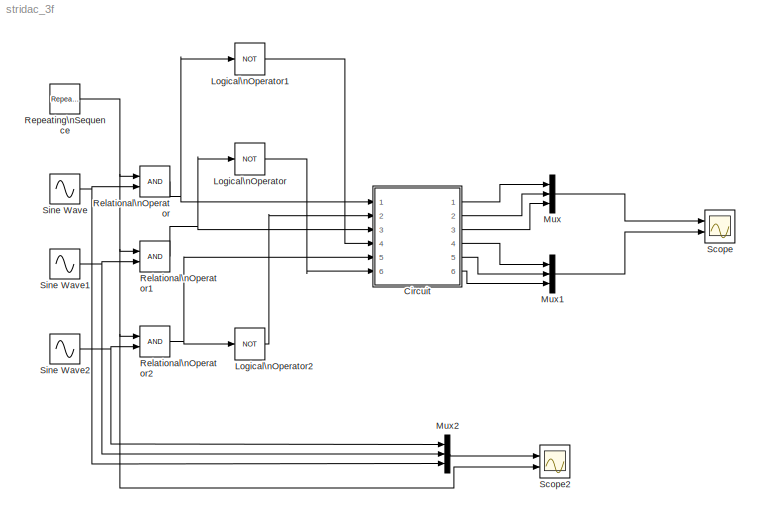
MODEL stridac_3f
KIND model
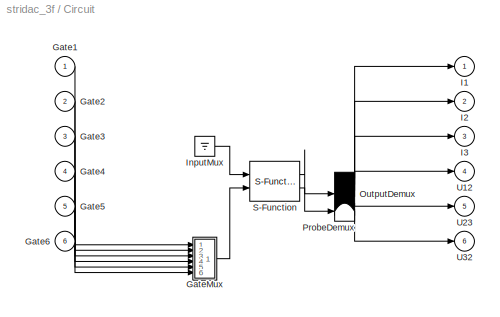
BLOCK [SubSystem] Circuit
  CopyFcn = plecsedit('sl', 203);
  DeleteFcn = plecsedit('sl', 205);
  DestroyFcn = plecsedit('sl', 207);
  ErrorFcn = plerrorfcn
  FunctionWithSeparateData = off
  InitFcn = plecsedit('sl', 214);
  LoadFcn = plecsedit('sl', 200);
  MaskHideContents = off
  MinAlgLoopOccurrences = off
  NameChangeFcn = plecsedit('sl', 210);
  Opaque = off
  OpenFcn = plecsedit('sl', 202);
  Ports = [6, 6]
  PostSaveFcn = plecsedit('sl', 201);
  PreCopyFcn = plecsedit('sl', 216);
  PreSaveFcn = plecsedit('sl', 211);
  PropExecContextOutsideSubsystem = off
  RTWSystemCode = Auto
  RequestExecContextInheritance = off
  SID = 1
  StartFcn = plecsedit('sl', 208);
  StopFcn = plecsedit('sl', 209);
  UndoDeleteFcn = plecsedit('sl', 206);
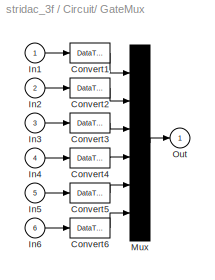
BLOCK [SubSystem] Circuit/ GateMux 
  FunctionWithSeparateData = off
  MaskHideContents = off
  MinAlgLoopOccurrences = off
  Opaque = off
  Ports = [6, 1]
  PropExecContextOutsideSubsystem = off
  RTWSystemCode = Auto
  RequestExecContextInheritance = off
  SID = 1:276
BLOCK [DataTypeConversion] Circuit/ GateMux /Convert1
  SID = 1:280
BLOCK [DataTypeConversion] Circuit/ GateMux /Convert2
  SID = 1:282
BLOCK [DataTypeConversion] Circuit/ GateMux /Convert3
  SID = 1:284
BLOCK [DataTypeConversion] Circuit/ GateMux /Convert4
  SID = 1:286
BLOCK [DataTypeConversion] Circuit/ GateMux /Convert5
  SID = 1:288
BLOCK [DataTypeConversion] Circuit/ GateMux /Convert6
  SID = 1:290
BLOCK [Inport] Circuit/ GateMux /In1
  IconDisplay = Port number
  SID = 1:279
BLOCK [Inport] Circuit/ GateMux /In2
  IconDisplay = Port number
  Port = 2
  SID = 1:281
BLOCK [Inport] Circuit/ GateMux /In3
  IconDisplay = Port number
  Port = 3
  SID = 1:283
BLOCK [Inport] Circuit/ GateMux /In4
  IconDisplay = Port number
  Port = 4
  SID = 1:285
BLOCK [Inport] Circuit/ GateMux /In5
  IconDisplay = Port number
  Port = 5
  SID = 1:287
BLOCK [Inport] Circuit/ GateMux /In6
  IconDisplay = Port number
  Port = 6
  SID = 1:289
BLOCK [Mux] Circuit/ GateMux /Mux
  Inputs = [ 1 1 1 1 1 1 ]
  Ports = [6, 1]
  SID = 1:278
BLOCK [Outport] Circuit/ GateMux /Out
  IconDisplay = Port number
  SID = 1:277
BLOCK [Ground] Circuit/ InputMux 
  SID = 1:223
BLOCK [Demux] Circuit/ OutputDemux 
  Outputs = [ 1 1 1 1 1 1 ]
  Ports = [1, 6]
  SID = 1:225
BLOCK [Terminator] Circuit/ ProbeDemux 
  SID = 1:9
BLOCK [S-Function] Circuit/ S-Function 
  EnableBusSupport = off
  FunctionName = plecsedit
  Ports = [2, 2]
  SID = 1:10
BLOCK [Inport] Circuit/Gate1
  IconDisplay = Port number
  PortDimensions = 1
  SID = 1:204
BLOCK [Inport] Circuit/Gate2
  IconDisplay = Port number
  Port = 2
  PortDimensions = 1
  SID = 1:231
BLOCK [Inport] Circuit/Gate3
  IconDisplay = Port number
  Port = 3
  PortDimensions = 1
  SID = 1:239
BLOCK [Inport] Circuit/Gate4
  IconDisplay = Port number
  Port = 4
  PortDimensions = 1
  SID = 1:249
BLOCK [Inport] Circuit/Gate5
  IconDisplay = Port number
  Port = 5
  PortDimensions = 1
  SID = 1:261
BLOCK [Inport] Circuit/Gate6
  IconDisplay = Port number
  Port = 6
  PortDimensions = 1
  SID = 1:275
BLOCK [Outport] Circuit/I1
  IconDisplay = Port number
  PortDimensions = 1
  SID = 1:224
BLOCK [Outport] Circuit/I2
  IconDisplay = Port number
  Port = 2
  PortDimensions = 1
  SID = 1:226
BLOCK [Outport] Circuit/I3
  IconDisplay = Port number
  Port = 3
  PortDimensions = 1
  SID = 1:227
BLOCK [Outport] Circuit/U12
  IconDisplay = Port number
  Port = 4
  PortDimensions = 1
  SID = 1:228
BLOCK [Outport] Circuit/U23
  IconDisplay = Port number
  Port = 5
  PortDimensions = 1
  SID = 1:229
BLOCK [Outport] Circuit/U32
  IconDisplay = Port number
  Port = 6
  PortDimensions = 1
  SID = 1:230
BLOCK [Logic] Logical\nOperator
  AllPortsSameDT = off
  Operator = NOT
  OutDataTypeStr = boolean
  Ports = [1, 1]
  SID = 10
BLOCK [Logic] Logical\nOperator1
  AllPortsSameDT = off
  Operator = NOT
  OutDataTypeStr = boolean
  Ports = [1, 1]
  SID = 20
BLOCK [Logic] Logical\nOperator2
  AllPortsSameDT = off
  Operator = NOT
  OutDataTypeStr = boolean
  Ports = [1, 1]
  SID = 21
BLOCK [Mux] Mux
  DisplayOption = bar
  Inputs = 3
  Ports = [3, 1]
  SID = 4
BLOCK [Mux] Mux1
  DisplayOption = bar
  Inputs = 3
  Ports = [3, 1]
  SID = 5
BLOCK [Mux] Mux2
  DisplayOption = bar
  Inputs = 3
  Ports = [3, 1]
  SID = 22
BLOCK [RelationalOperator] Relational\nOperator
  InputSameDT = off
  OutDataTypeStr = boolean
  Ports = [2, 1]
  SID = 9
BLOCK [RelationalOperator] Relational\nOperator1
  InputSameDT = off
  OutDataTypeStr = boolean
  Ports = [2, 1]
  SID = 12
BLOCK [RelationalOperator] Relational\nOperator2
  InputSameDT = off
  OutDataTypeStr = boolean
  Ports = [2, 1]
  SID = 15
BLOCK [Reference] Repeating\nSequence  REF=simulink/Sources/Repeating\nSequence
  Ports = [0, 1]
  SID = 8
  SourceBlock = simulink/Sources/Repeating\nSequence
  SourceType = Repeating table
  rep_seq_t = [0 0.5 1]/1000
  rep_seq_y = [-1 1 -1]
BLOCK [Scope] Scope
  DataFormat = StructureWithTime
  Floating = off
  LimitDataPoints = off
  NumInputPorts = 2
  Ports = [2]
  SID = 2
  SampleTime = 0
  ShowLegends = off
  TimeRange = 0.5
  YMax = 700~200
  YMin = -700~-200
BLOCK [Scope] Scope2
  DataFormat = StructureWithTime
  Floating = off
  LimitDataPoints = off
  NumInputPorts = 2
  Ports = [2]
  SID = 6
  SampleTime = 0
  SaveName = ScopeData2
  ShowLegends = off
  YMax = 1~5
  YMin = -1~-5
  ZoomMode = yonly
BLOCK [Sin] Sine Wave
  Frequency = 50
  Ports = [0, 1]
  SID = 17
  SampleTime = 0
BLOCK [Sin] Sine Wave1
  Frequency = 50
  Phase = (2*pi)/(3)
  Ports = [0, 1]
  SID = 18
  SampleTime = 0
BLOCK [Sin] Sine Wave2
  Frequency = 50
  Phase = (4*pi)/3
  Ports = [0, 1]
  SID = 19
  SampleTime = 0
LINE Circuit/ GateMux /Convert1:1 -> Circuit/ GateMux /Mux:1
LINE Circuit/ GateMux /Convert2:1 -> Circuit/ GateMux /Mux:2
LINE Circuit/ GateMux /Convert3:1 -> Circuit/ GateMux /Mux:3
LINE Circuit/ GateMux /Convert4:1 -> Circuit/ GateMux /Mux:4
LINE Circuit/ GateMux /Convert5:1 -> Circuit/ GateMux /Mux:5
LINE Circuit/ GateMux /Convert6:1 -> Circuit/ GateMux /Mux:6
LINE Circuit/ GateMux /In1:1 -> Circuit/ GateMux /Convert1:1
LINE Circuit/ GateMux /In2:1 -> Circuit/ GateMux /Convert2:1
LINE Circuit/ GateMux /In3:1 -> Circuit/ GateMux /Convert3:1
LINE Circuit/ GateMux /In4:1 -> Circuit/ GateMux /Convert4:1
LINE Circuit/ GateMux /In5:1 -> Circuit/ GateMux /Convert5:1
LINE Circuit/ GateMux /In6:1 -> Circuit/ GateMux /Convert6:1
LINE Circuit/ GateMux /Mux:1 -> Circuit/ GateMux /Out:1
LINE Circuit/ GateMux :1 -> Circuit/ S-Function :2
LINE Circuit/ InputMux :1 -> Circuit/ S-Function :1
LINE Circuit/ OutputDemux :1 -> Circuit/I1:1
LINE Circuit/ OutputDemux :2 -> Circuit/I2:1
LINE Circuit/ OutputDemux :3 -> Circuit/I3:1
LINE Circuit/ OutputDemux :4 -> Circuit/U12:1
LINE Circuit/ OutputDemux :5 -> Circuit/U23:1
LINE Circuit/ OutputDemux :6 -> Circuit/U32:1
LINE Circuit/ S-Function :1 -> Circuit/ OutputDemux :1
LINE Circuit/ S-Function :2 -> Circuit/ ProbeDemux :1
LINE Circuit/Gate1:1 -> Circuit/ GateMux :1
LINE Circuit/Gate2:1 -> Circuit/ GateMux :2
LINE Circuit/Gate3:1 -> Circuit/ GateMux :3
LINE Circuit/Gate4:1 -> Circuit/ GateMux :4
LINE Circuit/Gate5:1 -> Circuit/ GateMux :5
LINE Circuit/Gate6:1 -> Circuit/ GateMux :6
LINE Circuit:1 -> Mux:1
LINE Circuit:2 -> Mux:2
LINE Circuit:3 -> Mux:3
LINE Circuit:4 -> Mux1:1
LINE Circuit:5 -> Mux1:2
LINE Circuit:6 -> Mux1:3
LINE Logical\nOperator1:1 -> Circuit:4
LINE Logical\nOperator2:1 -> Circuit:2
LINE Logical\nOperator:1 -> Circuit:6
LINE Mux1:1 -> Scope:2
LINE Mux2:1 -> Scope2:1
LINE Mux:1 -> Scope:1
NET Relational\nOperator1:1 -> Circuit:3, Logical\nOperator:1
NET Relational\nOperator2:1 -> Circuit:5, Logical\nOperator2:1
NET Relational\nOperator:1 -> Circuit:1, Logical\nOperator1:1
NET Repeating\nSequence:1 -> Relational\nOperator1:1, Relational\nOperator2:1, Relational\nOperator:1, Scope2:2
NET Sine Wave1:1 -> Mux2:2, Relational\nOperator1:2
NET Sine Wave2:1 -> Mux2:1, Relational\nOperator2:2
NET Sine Wave:1 -> Mux2:3, Relational\nOperator:2
note: NET lines group one-source signal fan-out (src -> all destinations, sorted); 1:1 wires keep LINE
